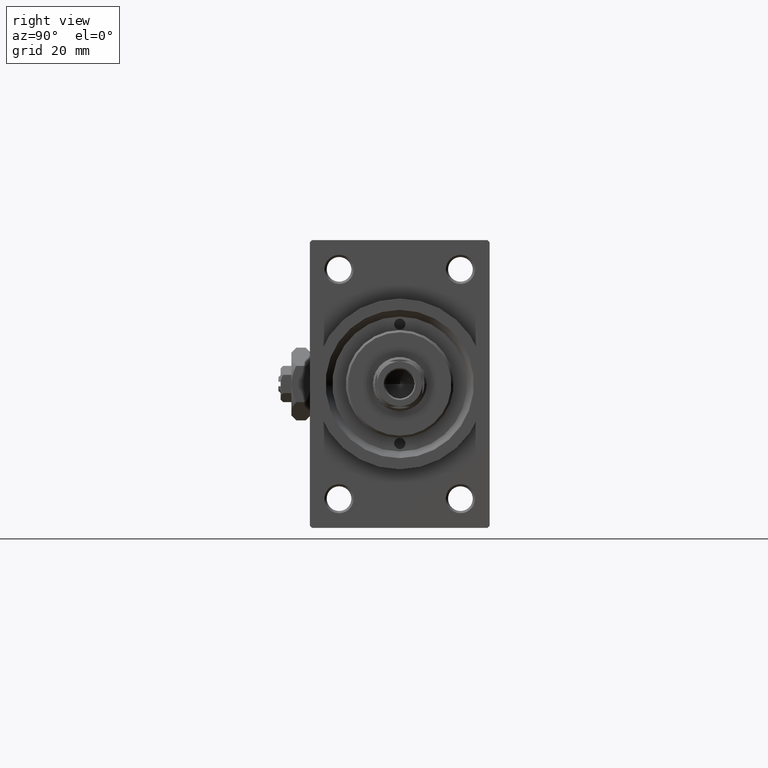
[diagram: clean part render]
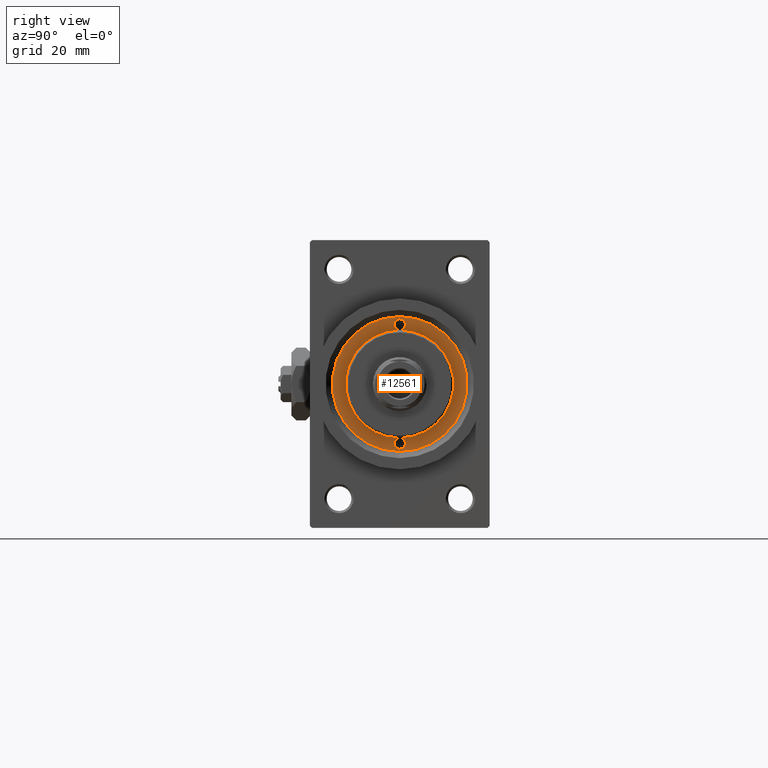
[diagram: same view with one face highlighted and labeled with its STEP entity id]
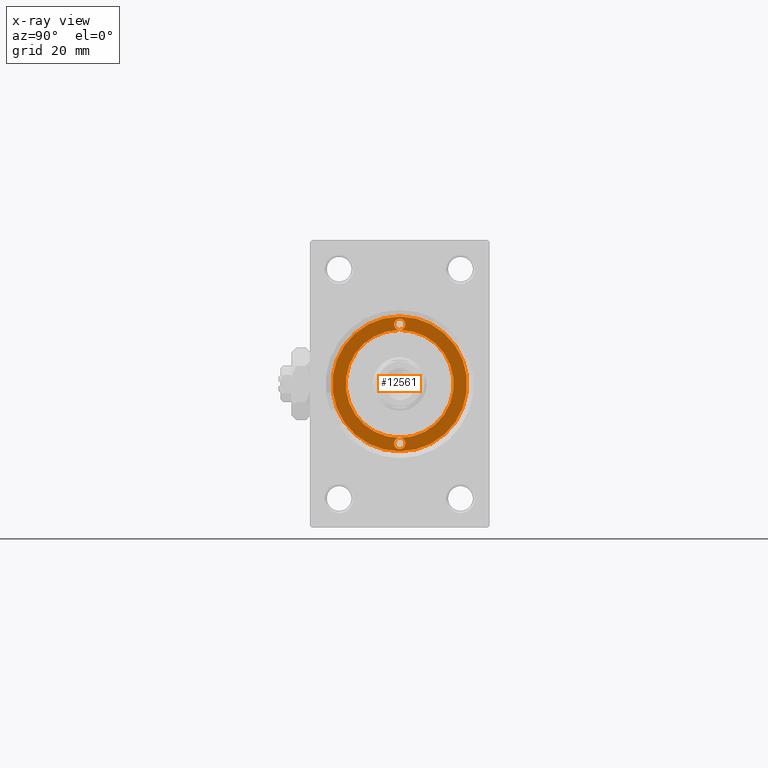
[diagram: x-ray of the same camera — body ghosted, the highlighted face saturated]
A machine part, right view. The second image highlights one B-rep face of the part: STEP entity #12561.
The next image is the same camera in x-ray: the body ghosted, the highlighted face saturated — about 0% of this face is hidden behind the body in this view.
In plain terms, the highlighted planar face has unit normal (1, -0, -0).
Its self-contained STEP definition (entity closure, byte-faithful):
#819 = AXIS2_PLACEMENT_3D ( 'NONE', #38524, #46174, #34551 ) ;
#1617 = DIRECTION ( 'NONE',  ( 1.000000000000000000, 0.000000000000000000, 0.000000000000000000 ) ) ;
#1624 = CIRCLE ( 'NONE', #819, 1.249999999999999334 ) ;
#2225 = EDGE_CURVE ( 'NONE', #32914, #21190, #1624, .T. ) ;
#2557 = DIRECTION ( 'NONE',  ( -0.000000000000000000, -0.000000000000000000, 1.000000000000000000 ) ) ;
#2871 = DIRECTION ( 'NONE',  ( 1.000000000000000000, 0.000000000000000000, 0.000000000000000000 ) ) ;
#3099 = ORIENTED_EDGE ( 'NONE', *, *, #12785, .T. ) ;
#3664 = ORIENTED_EDGE ( 'NONE', *, *, #43288, .F. ) ;
#4170 = ORIENTED_EDGE ( 'NONE', *, *, #19314, .F. ) ;
#4448 = DIRECTION ( 'NONE',  ( 1.000000000000000000, 0.000000000000000000, 0.000000000000000000 ) ) ;
#5770 = CARTESIAN_POINT ( 'NONE',  ( -15.00000000000000000, 0.000000000000000000, 43.25999999999999801 ) ) ;
#5810 = DIRECTION ( 'NONE',  ( 1.000000000000000000, 0.000000000000000000, 0.000000000000000000 ) ) ;
#8171 = CARTESIAN_POINT ( 'NONE',  ( 0.000000000000000000, 0.000000000000000000, 43.25999999999999801 ) ) ;
#8318 = AXIS2_PLACEMENT_3D ( 'NONE', #9554, #9305, #1617 ) ;
#9305 = DIRECTION ( 'NONE',  ( -0.000000000000000000, -0.000000000000000000, 1.000000000000000000 ) ) ;
#9554 = CARTESIAN_POINT ( 'NONE',  ( -13.25000000000000178, 0.000000000000000000, 43.25999999999999801 ) ) ;
#10970 = CARTESIAN_POINT ( 'NONE',  ( 14.49999999999999822, 0.000000000000000000, 43.25999999999999801 ) ) ;
#11440 = EDGE_LOOP ( 'NONE', ( #37210, #16820, #3664, #22672, #4170, #21312 ) ) ;
#12058 = FACE_BOUND ( 'NONE', #11440, .T. ) ;
#12561 = ADVANCED_FACE ( 'NONE', ( #12058, #31579 ), #35543, .T. ) ;
#12607 = EDGE_CURVE ( 'NONE', #32914, #25053, #44532, .T. ) ;
#12649 = DIRECTION ( 'NONE',  ( 0.000000000000000000, 0.000000000000000000, 1.000000000000000000 ) ) ;
#12785 = EDGE_CURVE ( 'NONE', #33553, #39785, #13714, .T. ) ;
#12896 = DIRECTION ( 'NONE',  ( 1.000000000000000000, 0.000000000000000000, 0.000000000000000000 ) ) ;
#12899 = AXIS2_PLACEMENT_3D ( 'NONE', #21425, #46922, #2871 ) ;
#13714 = CIRCLE ( 'NONE', #16080, 15.00000000000000000 ) ;
#14710 = AXIS2_PLACEMENT_3D ( 'NONE', #24390, #2557, #25562 ) ;
#16008 = CARTESIAN_POINT ( 'NONE',  ( 0.000000000000000000, 0.000000000000000000, 43.25999999999999801 ) ) ;
#16080 = AXIS2_PLACEMENT_3D ( 'NONE', #18218, #26597, #22395 ) ;
#16820 = ORIENTED_EDGE ( 'NONE', *, *, #26303, .F. ) ;
#16945 = EDGE_LOOP ( 'NONE', ( #3099, #46451 ) ) ;
#18218 = CARTESIAN_POINT ( 'NONE',  ( 0.000000000000000000, 0.000000000000000000, 43.25999999999999801 ) ) ;
#18537 = EDGE_CURVE ( 'NONE', #39785, #33553, #47048, .T. ) ;
#18794 = AXIS2_PLACEMENT_3D ( 'NONE', #39960, #47126, #5810 ) ;
#18995 = CARTESIAN_POINT ( 'NONE',  ( 15.00000000000000000, 1.836970198721029589E-15, 43.25999999999999801 ) ) ;
#19314 = EDGE_CURVE ( 'NONE', #21190, #32914, #25751, .T. ) ;
#20316 = CARTESIAN_POINT ( 'NONE',  ( 0.000000000000000000, 0.000000000000000000, 43.25999999999999801 ) ) ;
#21190 = VERTEX_POINT ( 'NONE', #10970 ) ;
#21312 = ORIENTED_EDGE ( 'NONE', *, *, #2225, .F. ) ;
#21425 = CARTESIAN_POINT ( 'NONE',  ( 0.000000000000000000, 0.000000000000000000, 43.25999999999999801 ) ) ;
#21783 = CIRCLE ( 'NONE', #38406, 12.00000000000000178 ) ;
#22121 = EDGE_CURVE ( 'NONE', #25053, #32914, #21783, .T. ) ;
#22395 = DIRECTION ( 'NONE',  ( 1.000000000000000000, 0.000000000000000000, 0.000000000000000000 ) ) ;
#22562 = AXIS2_PLACEMENT_3D ( 'NONE', #20316, #12649, #12896 ) ;
#22672 = ORIENTED_EDGE ( 'NONE', *, *, #12607, .F. ) ;
#24142 = DIRECTION ( 'NONE',  ( 1.000000000000000000, 0.000000000000000000, -0.000000000000000000 ) ) ;
#24390 = CARTESIAN_POINT ( 'NONE',  ( 13.25000000000000000, 0.000000000000000000, 43.25999999999999801 ) ) ;
#25053 = VERTEX_POINT ( 'NONE', #37315 ) ;
#25562 = DIRECTION ( 'NONE',  ( 1.000000000000000000, 0.000000000000000000, 0.000000000000000000 ) ) ;
#25751 = CIRCLE ( 'NONE', #14710, 1.249999999999999334 ) ;
#26303 = EDGE_CURVE ( 'NONE', #48518, #25053, #32214, .T. ) ;
#26597 = DIRECTION ( 'NONE',  ( 0.000000000000000000, 0.000000000000000000, 1.000000000000000000 ) ) ;
#27904 = AXIS2_PLACEMENT_3D ( 'NONE', #16008, #46681, #24142 ) ;
#28519 = CARTESIAN_POINT ( 'NONE',  ( -14.50000000000000000, 1.530808498934191571E-16, 43.25999999999999801 ) ) ;
#31579 = FACE_OUTER_BOUND ( 'NONE', #16945, .T. ) ;
#32214 = CIRCLE ( 'NONE', #18794, 1.249999999999999334 ) ;
#32914 = VERTEX_POINT ( 'NONE', #47756 ) ;
#33553 = VERTEX_POINT ( 'NONE', #5770 ) ;
#34551 = DIRECTION ( 'NONE',  ( 1.000000000000000000, 0.000000000000000000, 0.000000000000000000 ) ) ;
#35543 = PLANE ( 'NONE',  #27904 ) ;
#37210 = ORIENTED_EDGE ( 'NONE', *, *, #22121, .F. ) ;
#37315 = CARTESIAN_POINT ( 'NONE',  ( -12.00000000000000178, 0.000000000000000000, 43.25999999999999801 ) ) ;
#38349 = CIRCLE ( 'NONE', #8318, 1.249999999999999334 ) ;
#38406 = AXIS2_PLACEMENT_3D ( 'NONE', #8171, #48765, #4448 ) ;
#38524 = CARTESIAN_POINT ( 'NONE',  ( 13.25000000000000000, 0.000000000000000000, 43.25999999999999801 ) ) ;
#39785 = VERTEX_POINT ( 'NONE', #18995 ) ;
#39960 = CARTESIAN_POINT ( 'NONE',  ( -13.25000000000000178, 0.000000000000000000, 43.25999999999999801 ) ) ;
#43288 = EDGE_CURVE ( 'NONE', #25053, #48518, #38349, .T. ) ;
#44532 = CIRCLE ( 'NONE', #12899, 12.00000000000000178 ) ;
#46174 = DIRECTION ( 'NONE',  ( -0.000000000000000000, -0.000000000000000000, 1.000000000000000000 ) ) ;
#46451 = ORIENTED_EDGE ( 'NONE', *, *, #18537, .T. ) ;
#46681 = DIRECTION ( 'NONE',  ( 0.000000000000000000, 0.000000000000000000, 1.000000000000000000 ) ) ;
#46922 = DIRECTION ( 'NONE',  ( 0.000000000000000000, 0.000000000000000000, 1.000000000000000000 ) ) ;
#47048 = CIRCLE ( 'NONE', #22562, 15.00000000000000000 ) ;
#47126 = DIRECTION ( 'NONE',  ( -0.000000000000000000, -0.000000000000000000, 1.000000000000000000 ) ) ;
#47756 = CARTESIAN_POINT ( 'NONE',  ( 12.00000000000000178, 1.469576158976824144E-15, 43.25999999999999801 ) ) ;
#48518 = VERTEX_POINT ( 'NONE', #28519 ) ;
#48765 = DIRECTION ( 'NONE',  ( 0.000000000000000000, 0.000000000000000000, 1.000000000000000000 ) ) ;